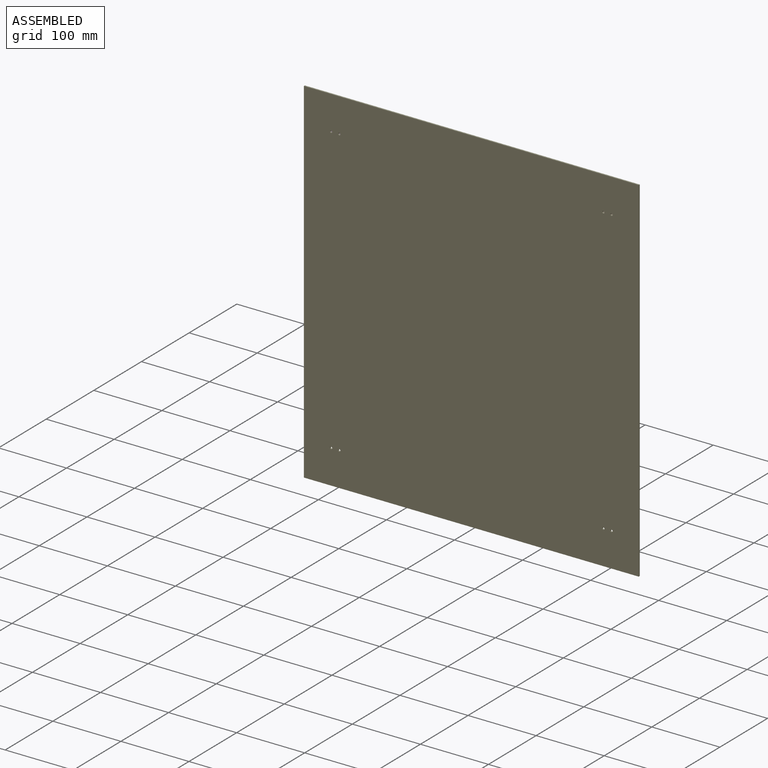
[diagram: assembled view]
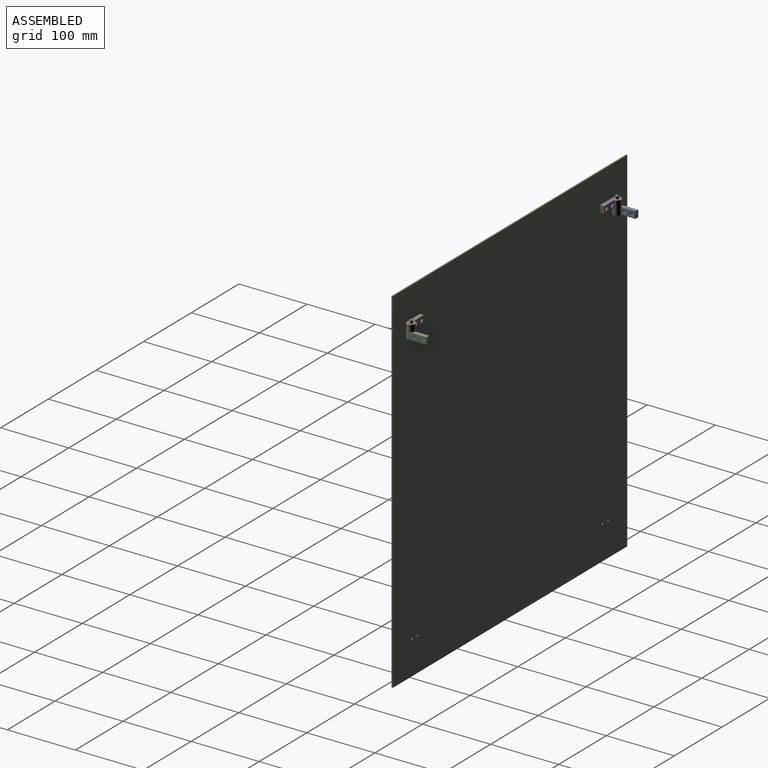
[diagram: assembled view, second angle]
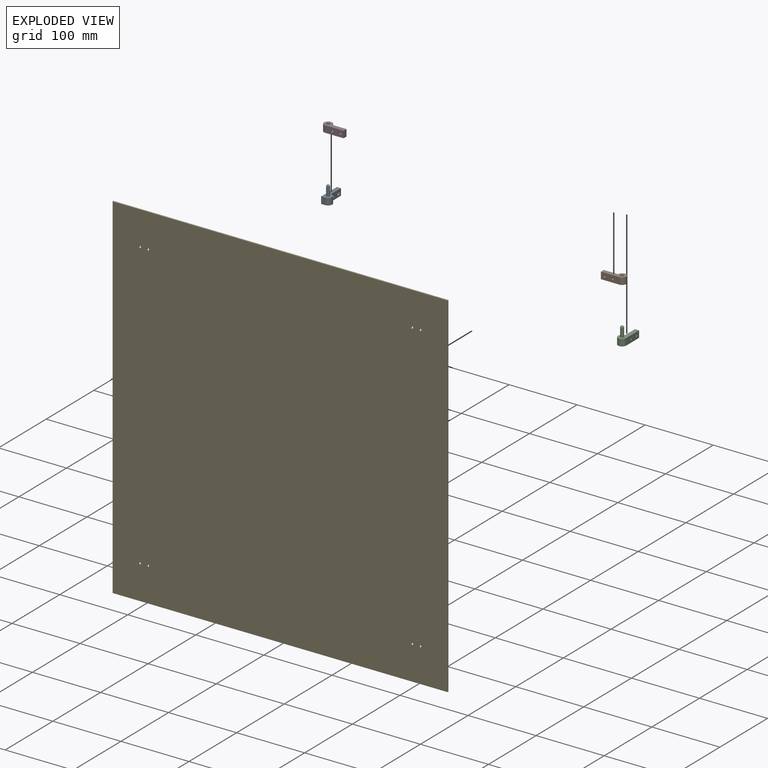
[diagram: exploded view]
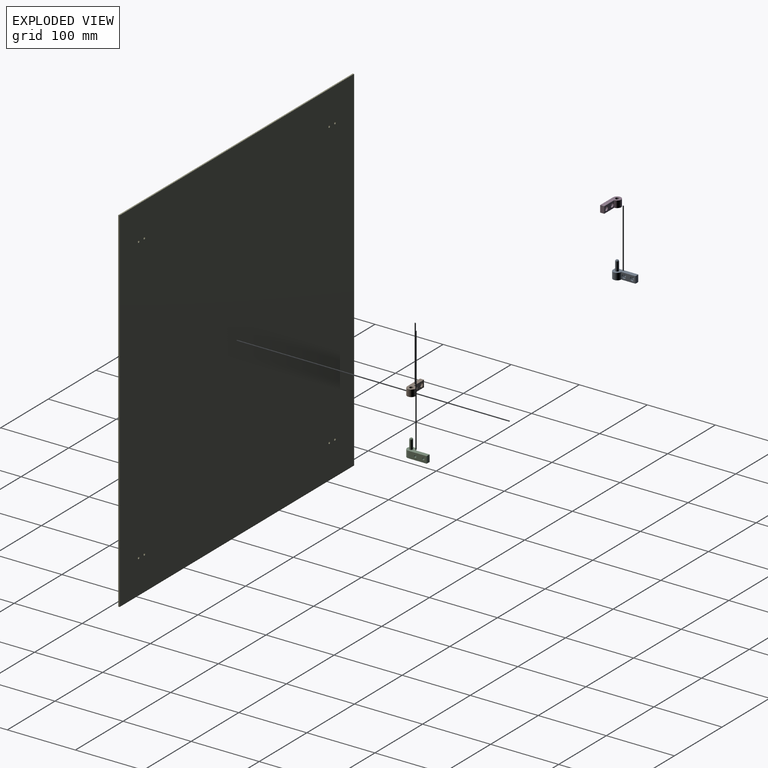
[diagram: exploded view, second angle]
ASSEMBLY  parts=5 mates=4
PART A: 16 faces, bbox 33x12x25 mm
  f0: cylinder r=1.6mm len=3.5mm, axis (0,1,0), area 35.2mm2, adj f5,f10
  f1: cylinder r=1.6mm len=3.5mm, axis (0,1,0), area 35.2mm2, adj f5,f8
  f2: plane 33x12mm, normal (0,0,1), area 254.5mm2, adj f4,f5,f6,f11,f12
  f3: plane 33x12mm, normal (0,0,-1), area 236.5mm2, adj f4,f5,f6,f11,f12,f13
  f4: plane 10x6mm, normal (1,0,0), area 60mm2, adj f2,f3,f5,f6
  f5: plane 33x10mm, normal (0,-1,0), area 313.9mm2, adj f0,f1,f2,f3,f4,f12
  f6: plane 21x10mm, normal (0,1,0), area 153.5mm2, adj f2,f3,f4,f7,f9,f11
  f7: cylinder r=3mm len=6mm, axis (0,1,0), area 47.1mm2, adj f6,f8
  f8: plane 6x6mm, normal (0,1,0), area 20.2mm2, adj f1,f7
  f9: cylinder r=3mm len=6mm, axis (0,1,0), area 47.1mm2, adj f6,f10
  f10: plane 6x6mm, normal (0,1,0), area 20.2mm2, adj f0,f9
  f11: cylinder r=6mm len=12mm, axis (0,0,1), area 188.5mm2, adj f2,f3,f6,f12
  f12: plane 10x6mm, normal (-1,0,0), area 60mm2, adj f2,f3,f5,f11
  f13: cylinder r=2.4mm len=13mm, axis (0,0,1), area 196mm2, adj f3,f15
  f14: plane 0.8x0.8mm, normal (0,0,-1), area 0.5mm2, adj f15
  f15: torus R=0.4mm, axis (0,0,1), area 33mm2, adj f13,f14
PART B: 13 faces, bbox 12x33x10 mm
  f0: cylinder r=1.6mm len=3.5mm, axis (-1,0,0), area 35.2mm2, adj f5,f11
  f1: cylinder r=1.6mm len=3.5mm, axis (-1,0,0), area 35.2mm2, adj f5,f9
  f2: cylinder r=6mm len=12mm, axis (0,0,1), area 282.7mm2, adj f3,f4,f5,f6
  f3: plane 33x12mm, normal (0,0,-1), area 225.6mm2, adj f2,f5,f6,f7,f8
  f4: plane 33x12mm, normal (0,0,1), area 225.6mm2, adj f2,f5,f6,f7,f8
  f5: plane 27x10mm, normal (1,0,0), area 253.9mm2, adj f0,f1,f2,f3,f4,f7
  f6: plane 21x10mm, normal (-1,0,0), area 153.5mm2, adj f2,f3,f4,f7,f10,f12
  f7: plane 10x6mm, normal (0,1,0), area 60mm2, adj f3,f4,f5,f6
  f8: cylinder r=2.6mm len=10mm, axis (0,0,-1), area 163.4mm2, adj f3,f4
  f9: plane 6x6mm, normal (-1,0,0), area 20.2mm2, adj f1,f10
  f10: cylinder r=3mm len=6mm, axis (-1,0,0), area 47.1mm2, adj f6,f9
  f11: plane 6x6mm, normal (-1,0,0), area 20.2mm2, adj f0,f12
  f12: cylinder r=3mm len=6mm, axis (-1,0,0), area 47.1mm2, adj f6,f11
PART C: 15 faces, bbox 33x12x25 mm
  f0: cylinder r=1.6mm len=3.5mm, axis (0,1,0), area 35.2mm2, adj f5,f10
  f1: cylinder r=1.6mm len=3.5mm, axis (0,1,0), area 35.2mm2, adj f5,f8
  f2: plane 33x12mm, normal (0,0,1), area 246.8mm2, adj f3,f5,f6,f11
  f3: plane 10x6mm, normal (-1,0,0), area 60mm2, adj f2,f4,f5,f6
  f4: plane 33x12mm, normal (0,0,-1), area 228.7mm2, adj f3,f5,f6,f11,f12
  f5: plane 27x10mm, normal (0,-1,0), area 253.9mm2, adj f0,f1,f2,f3,f4,f11
  f6: plane 21x10mm, normal (0,1,0), area 153.5mm2, adj f2,f3,f4,f7,f9,f11
  f7: cylinder r=3mm len=6mm, axis (0,1,0), area 47.1mm2, adj f6,f8
  f8: plane 6x6mm, normal (0,1,0), area 20.2mm2, adj f1,f7
  f9: cylinder r=3mm len=6mm, axis (0,1,0), area 47.1mm2, adj f6,f10
  f10: plane 6x6mm, normal (0,1,0), area 20.2mm2, adj f0,f9
  f11: cylinder r=6mm len=12mm, axis (0,0,1), area 282.7mm2, adj f2,f4,f5,f6
  f12: cylinder r=2.4mm len=13mm, axis (0,0,1), area 196mm2, adj f4,f14
  f13: plane 0.8x0.8mm, normal (0,0,-1), area 0.5mm2, adj f14
  f14: torus R=0.4mm, axis (0,0,1), area 33mm2, adj f12,f13
PART D: 13 faces, bbox 12x33x10 mm
  f0: cylinder r=1.6mm len=3.5mm, axis (-1,0,0), area 35.2mm2, adj f6,f11
  f1: cylinder r=1.6mm len=3.5mm, axis (-1,0,0), area 35.2mm2, adj f6,f9
  f2: cylinder r=6mm len=12mm, axis (0,0,1), area 282.7mm2, adj f3,f4,f5,f6
  f3: plane 33x12mm, normal (0,0,-1), area 225.6mm2, adj f2,f5,f6,f7,f8
  f4: plane 33x12mm, normal (0,0,1), area 225.6mm2, adj f2,f5,f6,f7,f8
  f5: plane 21x10mm, normal (1,0,0), area 153.5mm2, adj f2,f3,f4,f7,f10,f12
  f6: plane 27x10mm, normal (-1,0,0), area 253.9mm2, adj f0,f1,f2,f3,f4,f7
  f7: plane 10x6mm, normal (0,1,0), area 60mm2, adj f3,f4,f5,f6
  f8: cylinder r=2.6mm len=10mm, axis (0,0,-1), area 163.4mm2, adj f3,f4
  f9: plane 6x6mm, normal (1,0,0), area 20.2mm2, adj f1,f10
  f10: cylinder r=3mm len=6mm, axis (1,0,0), area 47.1mm2, adj f5,f9
  f11: plane 6x6mm, normal (1,0,0), area 20.2mm2, adj f0,f12
  f12: cylinder r=3mm len=6mm, axis (1,0,0), area 47.1mm2, adj f5,f11
PART E: 14 faces, bbox 492x2x520 mm
  f0: plane 492x2mm, normal (0,0,1), area 984mm2, adj f1,f11,f12,f13
  f1: plane 520x2mm, normal (-1,0,0), area 1040mm2, adj f0,f2,f12,f13
  f2: plane 492x2mm, normal (0,0,-1), area 984mm2, adj f1,f11,f12,f13
  f3: cylinder r=1.6mm len=3.2mm, axis (0,1,0), area 20.1mm2, adj f12,f13
  f4: cylinder r=1.6mm len=3.2mm, axis (0,1,0), area 20.1mm2, adj f12,f13
  f5: cylinder r=1.6mm len=3.2mm, axis (0,1,0), area 20.1mm2, adj f12,f13
  f6: cylinder r=1.6mm len=3.2mm, axis (0,1,0), area 20.1mm2, adj f12,f13
  f7: cylinder r=1.6mm len=3.2mm, axis (0,1,0), area 20.1mm2, adj f12,f13
  f8: cylinder r=1.6mm len=3.2mm, axis (0,1,0), area 20.1mm2, adj f12,f13
  f9: cylinder r=1.6mm len=3.2mm, axis (0,1,0), area 20.1mm2, adj f12,f13
  f10: cylinder r=1.6mm len=3.2mm, axis (0,1,0), area 20.1mm2, adj f12,f13
  f11: plane 520x2mm, normal (1,0,0), area 1040mm2, adj f0,f2,f12,f13
  f12: plane 520x492mm, normal (0,-1,0), area 255775.7mm2, adj f0,f1,f2,f3,f4,f5,f6,f7
  f13: plane 520x492mm, normal (0,1,0), area 255775.7mm2, adj f0,f1,f2,f3,f4,f5,f6,f7
PLACE A rot(axis=(-0.71,-0.71,0),180deg) t=(-607.19,-160.57,-13.06)mm
PLACE B rot(axis=(-0.71,0.71,0),180deg) t=(-175.19,-145.97,-13.06)mm
PLACE C rot(axis=(-0.71,0.71,0),180deg) t=(-175.19,-145.97,-13.06)mm
PLACE D rot(axis=(-0.71,-0.71,0),180deg) t=(-607.19,-160.57,-13.06)mm
PLACE E t=(-391.19,-175.27,-220.97)mm
MATE fastened A.f11 <-> D.f2  axis (0,0,1) through (-607.19,-169.27,-15.97)mm
MATE fastened C.f11 <-> B.f2  axis (0,0,1) through (-175.19,-169.27,-15.97)mm
MATE fastened E.f5 <-> D.f1  axis (0,1,0) through (-585.19,-175.27,-10.97)mm
MATE fastened E.f4 <-> B.f0  axis (0,1,0) through (-185.19,-175.27,-10.97)mm
